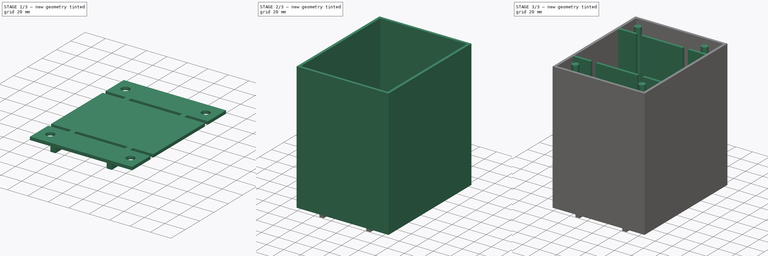
[diagram: build sequence overview — one tinted view per stage of 3, left to right]
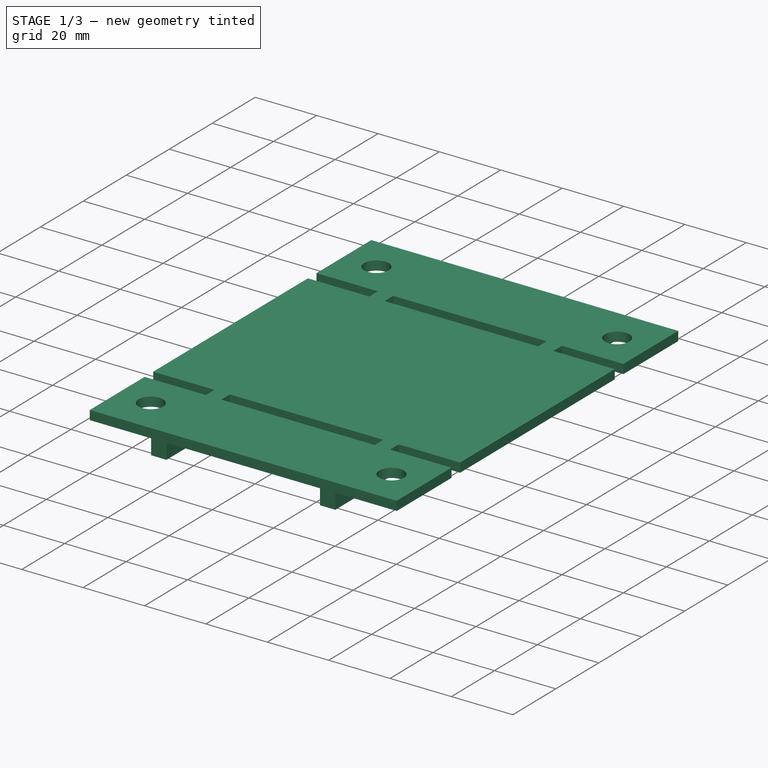
[diagram: stage 1 of 3 — iso view after this stage's code; geometry added in this stage tinted green]
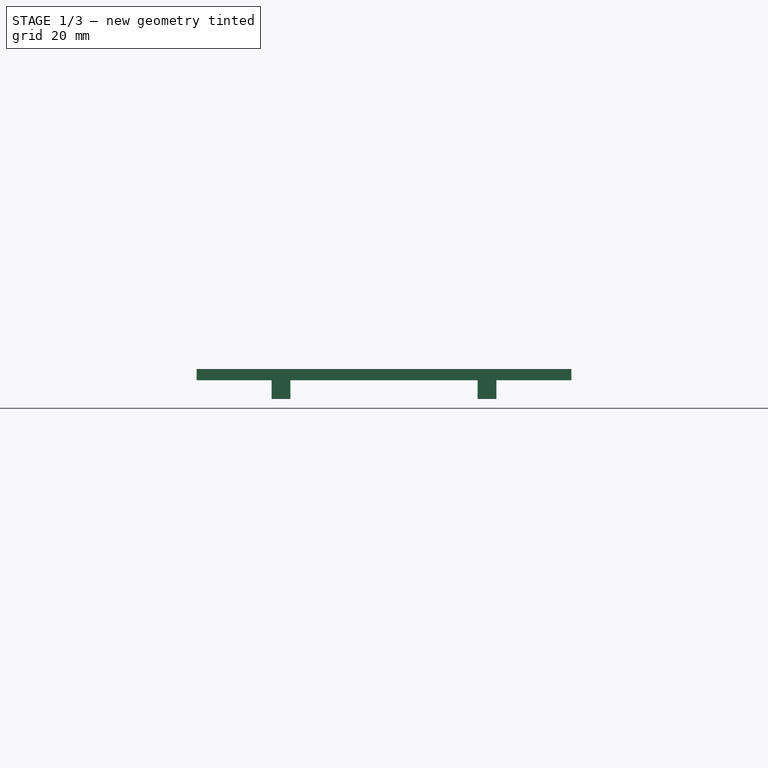
[diagram: stage 1 of 3 — front view after this stage's code; geometry added in this stage tinted green]
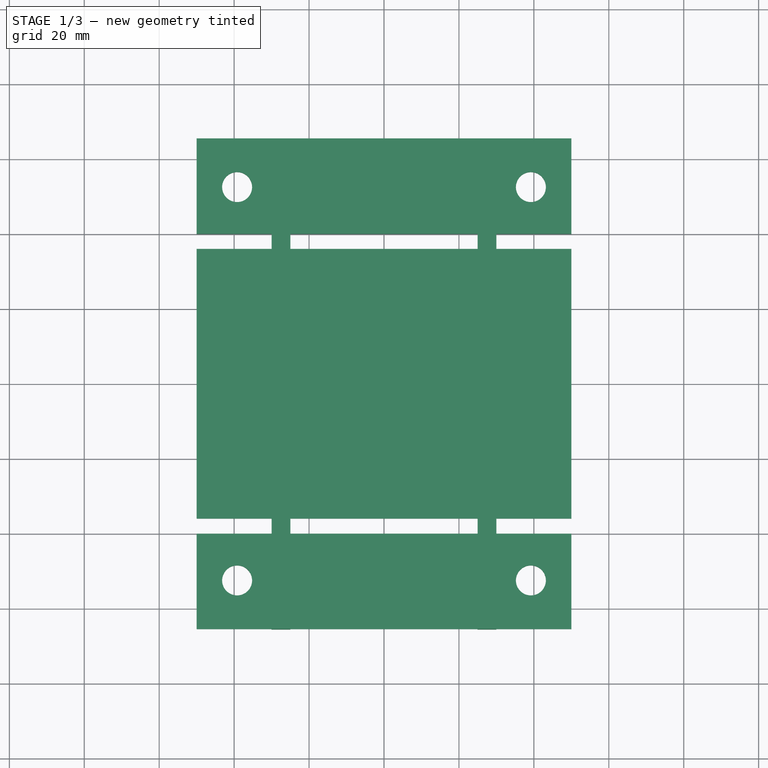
[diagram: stage 1 of 3 — top view after this stage's code; geometry added in this stage tinted green]
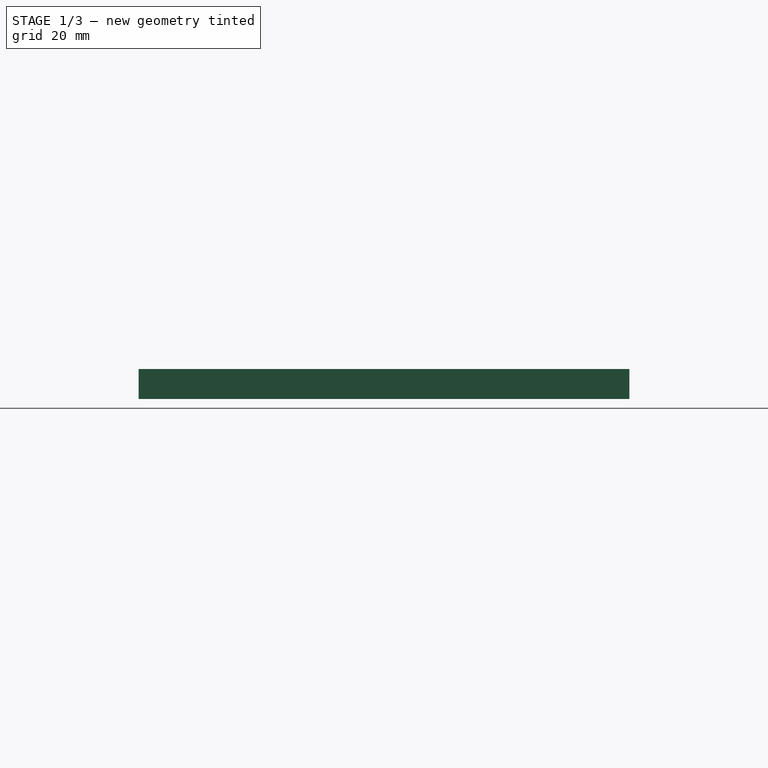
[diagram: stage 1 of 3 — right view after this stage's code; geometry added in this stage tinted green]
FCSTD DOCUMENT  (FreeCAD 0.19R)
Label: plateau_in
License: All rights reserved
LicenseURL: http://en.wikipedia.org/wiki/All_rights_reserved
objects: Sketcher::SketchObject×6, PartDesign::Pad×5, PartDesign::Body×2, PartDesign::Pocket×1
note: 20 computed .brp shape members not serialized (recipe doc carries the construction recipe); baked Part::Feature solids carry a one-line shape summary decoded from their .brp

FEATURE [Sketcher::SketchObject] Sketch
  FullyConstrained = false
  MapMode = 5
  Support = -> [XY_Plane]
  sketch-geometry (34):
    g0: LineSegment StartX=50 StartY=35.5 StartZ=0 EndX=50 EndY=-35.5 EndZ=0
    g1: LineSegment StartX=-50 StartY=65.5 StartZ=0 EndX=50 EndY=65.5 EndZ=0
    g2: LineSegment StartX=-50 StartY=-65.5 StartZ=0 EndX=50 EndY=-65.5 EndZ=0
    g3: Circle CenterX=-39.2072 CenterY=52.5 CenterZ=0 NormalX=0 NormalY=0 NormalZ=1 AngleXU=0 Radius=4
    g4: Circle CenterX=39.2072 CenterY=52.5 CenterZ=0 NormalX=0 NormalY=0 NormalZ=1 AngleXU=0 Radius=4
    g5: Circle CenterX=-39.2072 CenterY=-52.5 CenterZ=0 NormalX=0 NormalY=0 NormalZ=1 AngleXU=0 Radius=4
    g6: Circle CenterX=39.2072 CenterY=-52.5 CenterZ=0 NormalX=0 NormalY=0 NormalZ=1 AngleXU=0 Radius=4
    g7: LineSegment StartX=-50 StartY=40 StartZ=0 EndX=-30 EndY=40 EndZ=0
    g8: LineSegment StartX=-30 StartY=40 StartZ=0 EndX=-30 EndY=36 EndZ=0
    g9: LineSegment StartX=-30 StartY=36 StartZ=0 EndX=-50 EndY=36 EndZ=0
    g10: LineSegment StartX=50 StartY=40 StartZ=0 EndX=30 EndY=40 EndZ=0
    g11: LineSegment StartX=30 StartY=40 StartZ=0 EndX=30 EndY=36 EndZ=0
    g12: LineSegment StartX=30 StartY=36 StartZ=0 EndX=50 EndY=36 EndZ=0
    g13: LineSegment StartX=-50 StartY=40 StartZ=0 EndX=-50 EndY=65.5 EndZ=0
    g14: LineSegment StartX=-50 StartY=36 StartZ=0 EndX=-50 EndY=-36 EndZ=0
    g15: LineSegment StartX=50 StartY=65.5 StartZ=0 EndX=50 EndY=40 EndZ=0
    g16: LineSegment StartX=50 StartY=36 StartZ=0 EndX=50 EndY=35.5 EndZ=0
    g17: LineSegment StartX=-50 StartY=-65.5 StartZ=0 EndX=-50 EndY=-40 EndZ=0
    g18: LineSegment StartX=50 StartY=-65.5 StartZ=0 EndX=50 EndY=-40 EndZ=0
    g19: LineSegment StartX=-25 StartY=40 StartZ=0 EndX=25 EndY=40 EndZ=0
    g20: LineSegment StartX=25 StartY=40 StartZ=0 EndX=25 EndY=36 EndZ=0
    g21: LineSegment StartX=25 StartY=36 StartZ=0 EndX=-25 EndY=36 EndZ=0
    g22: LineSegment StartX=-25 StartY=36 StartZ=0 EndX=-25 EndY=40 EndZ=0
    g23: LineSegment StartX=-50 StartY=-40 StartZ=0 EndX=-30 EndY=-40 EndZ=0
    g24: LineSegment StartX=-30 StartY=-40 StartZ=0 EndX=-30 EndY=-36 EndZ=0
    g25: LineSegment StartX=-30 StartY=-36 StartZ=0 EndX=-50 EndY=-36 EndZ=0
    g26: LineSegment StartX=50 StartY=-40 StartZ=0 EndX=30 EndY=-40 EndZ=0
    g27: LineSegment StartX=30 StartY=-40 StartZ=0 EndX=30 EndY=-36 EndZ=0
    g28: LineSegment StartX=30 StartY=-36 StartZ=0 EndX=50 EndY=-36 EndZ=0
    g29: LineSegment StartX=50 StartY=-36 StartZ=0 EndX=50 EndY=-35.5 EndZ=0
    g30: LineSegment StartX=-25 StartY=-40 StartZ=0 EndX=25 EndY=-40 EndZ=0
    g31: LineSegment StartX=25 StartY=-40 StartZ=0 EndX=25 EndY=-36 EndZ=0
    g32: LineSegment StartX=25 StartY=-36 StartZ=0 EndX=-25 EndY=-36 EndZ=0
    g33: LineSegment StartX=-25 StartY=-36 StartZ=0 EndX=-25 EndY=-40 EndZ=0
  constraints (70):
    c: Symmetric(g0,g0,g-1)
    c: DistanceY(g0,g0) = 71
    c: Horizontal(g1)
    c: Horizontal(g2)
    c: DistanceY(g3,g1) = 13
    c: Radius(g3) = 4
    c: Radius(g4) = 4
    c: Radius(g5) = 4
    c: Radius(g6) = 4
    c: Coincident(g7,g8)
    c: Coincident(g8,g9)
    c: Horizontal(g7)
    c: Horizontal(g9)
    c: Vertical(g8)
    c: DistanceY(g9,g7) = 4
    c: DistanceX(g7,g7) = 20
    c: Coincident(g10,g11)
    c: Coincident(g11,g12)
    c: Horizontal(g10)
    c: Horizontal(g12)
    c: Vertical(g11)
    c: Coincident(g13,g7)
    c: Coincident(g13,g1)
    c: Vertical(g13)
    c: Coincident(g14,g9)
    c: Vertical(g14)
    c: Coincident(g15,g1)
    c: Coincident(g15,g10)
    c: Vertical(g15)
    c: Coincident(g16,g12)
    c: Coincident(g16,g0)
    c: Coincident(g17,g2)
    c: Vertical(g17)
    c: Coincident(g18,g2)
    c: Vertical(g18)
    c: Coincident(g19,g20)
    c: Coincident(g20,g21)
    c: Coincident(g21,g22)
    c: Coincident(g22,g19)
    c: Horizontal(g21)
    c: Vertical(g20)
    c: Vertical(g22)
    c: Symmetric(g19,g19,g-2)
    c: Horizontal(g19,g7)
    c: DistanceY(g21,g19) = 4
    c: DistanceX(g19,g19) = 50
    c: DistanceY(g0,g12) = 0.5
    c: DistanceY(g11,g10) = 4
    c: Horizontal(g20,g11)
    c: Coincident(g23,g24)
    c: Coincident(g24,g25)
    c: Horizontal(g23)
    c: Horizontal(g25)
    c: Vertical(g24)
    c: Coincident(g26,g27)
    c: Coincident(g27,g28)
    c: Horizontal(g26)
    c: Horizontal(g28)
    c: Vertical(g27)
    c: Coincident(g29,g28)
    c: Coincident(g30,g31)
    c: Coincident(g31,g32)
    c: Coincident(g32,g33)
    c: Coincident(g33,g30)
    c: Horizontal(g32)
    c: Vertical(g31)
    c: Vertical(g33)
    c: Coincident(g23,g17)
    c: Coincident(g25,g14)
    c: Coincident(g26,g18)
FEATURE [PartDesign::Pad] Pad
  Direction = (1,1,1)
  Length = 3
  Length2 = 100
  Profile = -> Sketch
  Type = 0
FEATURE [PartDesign::Body] Body001  label="cage"
  Group = -> [Sketch002,Pad002,Sketch003,Pocket,Sketch004,Pad003,Sketch005,Pad004]
  Origin = -> Origin001
  Tip = -> Pad004
FEATURE [PartDesign::Pad] Pad005
  BaseFeature = -> Pad
  Direction = (1,1,1)
  Length = 5
  Length2 = 100
  Profile = -> Sketch001
  Type = 0
FEATURE [PartDesign::Body] Body  label="plateau"
  Group = -> [Sketch,Pad,Sketch001,Pad005]
  Origin = -> Origin
  Placement = pos=(0,0,140.6) rot=(0,0,1;0rad)
  Tip = -> Pad005
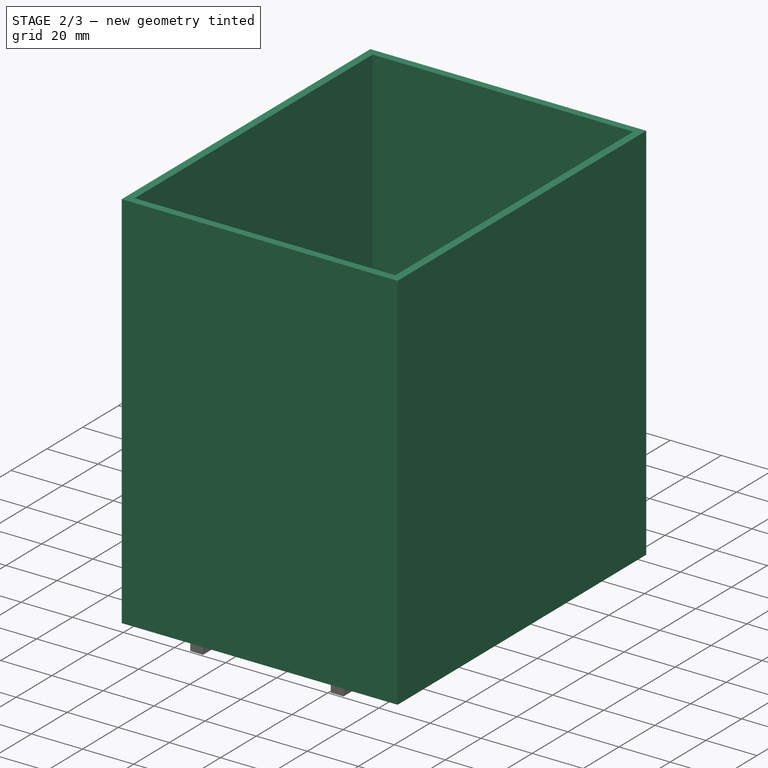
[diagram: stage 2 of 3 — iso view after this stage's code; geometry added in this stage tinted green]
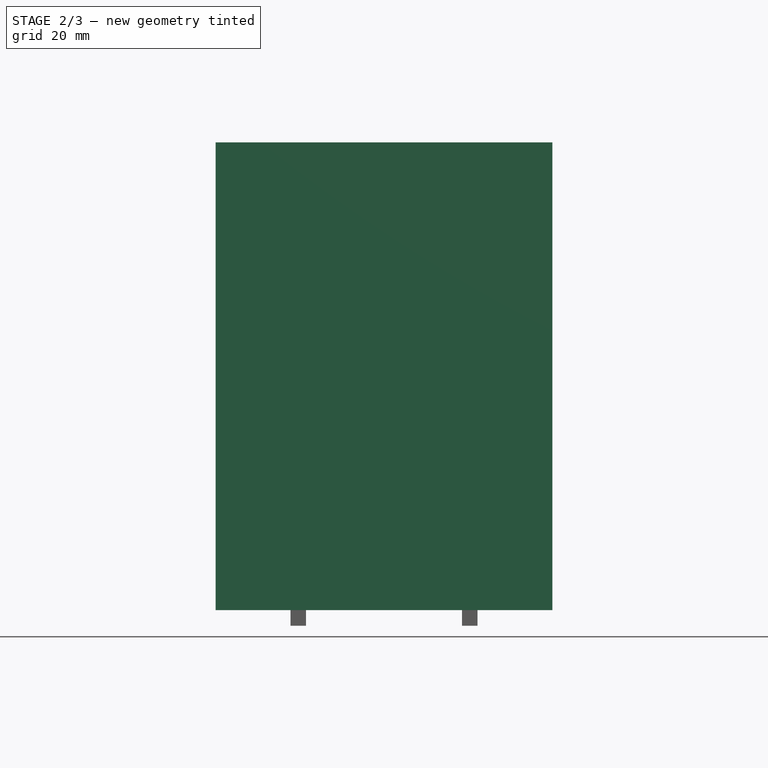
[diagram: stage 2 of 3 — front view after this stage's code; geometry added in this stage tinted green]
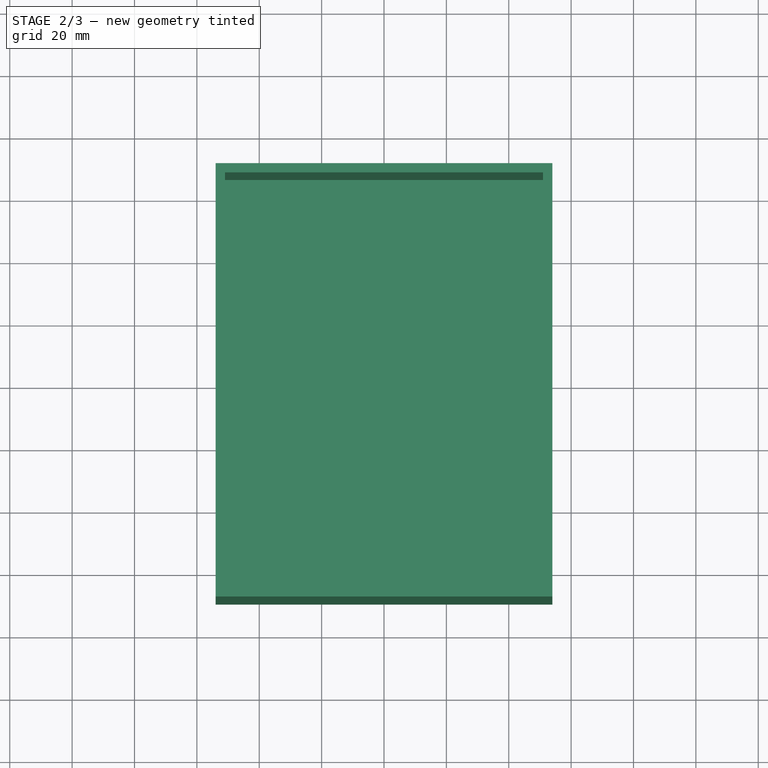
[diagram: stage 2 of 3 — top view after this stage's code; geometry added in this stage tinted green]
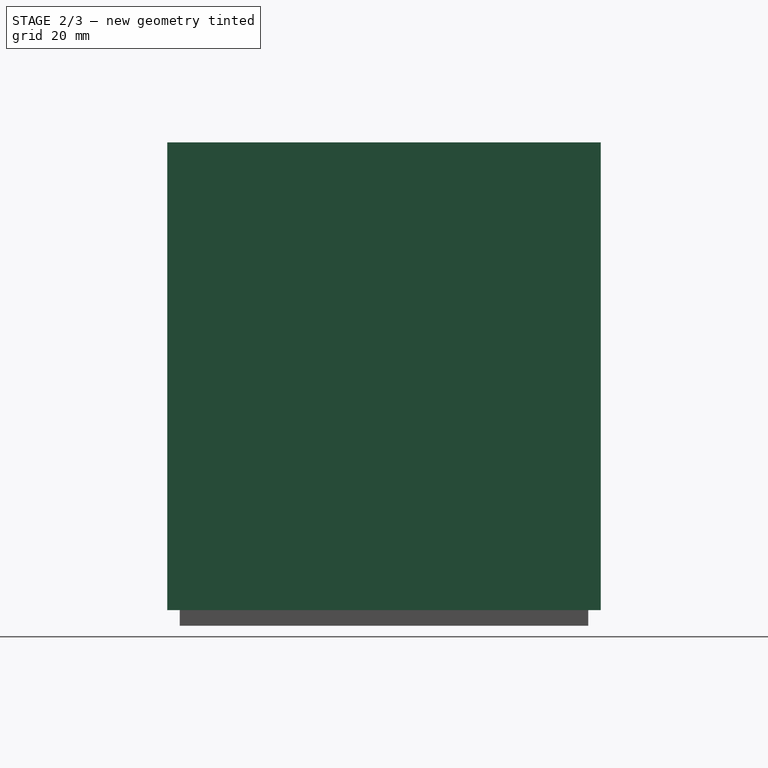
[diagram: stage 2 of 3 — right view after this stage's code; geometry added in this stage tinted green]
FEATURE [Sketcher::SketchObject] Sketch001
  ExternalGeometry = -> [Pad]
  FullyConstrained = false
  MapMode = 5
  Placement = pos=(0,0,0) rot=(1,0,0;3.14159rad)
  Support = -> [Pad]
  sketch-geometry (8):
    g0: LineSegment StartX=-30 StartY=65.5 StartZ=0 EndX=-25 EndY=65.5 EndZ=0
    g1: LineSegment StartX=-25 StartY=65.5 StartZ=0 EndX=-25 EndY=-65.5 EndZ=0
    g2: LineSegment StartX=-25 StartY=-65.5 StartZ=0 EndX=-30 EndY=-65.5 EndZ=0
    g3: LineSegment StartX=-30 StartY=-65.5 StartZ=0 EndX=-30 EndY=65.5 EndZ=0
    g4: LineSegment StartX=30 StartY=65.5 StartZ=0 EndX=25 EndY=65.5 EndZ=0
    g5: LineSegment StartX=25 StartY=65.5 StartZ=0 EndX=25 EndY=-65.5 EndZ=0
    g6: LineSegment StartX=25 StartY=-65.5 StartZ=0 EndX=30 EndY=-65.5 EndZ=0
    g7: LineSegment StartX=30 StartY=-65.5 StartZ=0 EndX=30 EndY=65.5 EndZ=0
  constraints (20):
    c: Coincident(g0,g1)
    c: Coincident(g1,g2)
    c: Coincident(g2,g3)
    c: Coincident(g3,g0)
    c: Horizontal(g0)
    c: Horizontal(g2)
    c: Vertical(g1)
    c: Vertical(g3)
    c: Vertical(g0,g-3)
    c: PointOnObject(g0,g-5)
    c: Vertical(g0,g-4)
    c: PointOnObject(g2,g-6)
    c: Coincident(g4,g5)
    c: Coincident(g5,g6)
    c: Coincident(g6,g7)
    c: Coincident(g7,g4)
    c: Horizontal(g4)
    c: Horizontal(g6)
    c: Vertical(g5)
    c: Vertical(g7)
FEATURE [Sketcher::SketchObject] Sketch002
  FullyConstrained = true
  MapMode = 5
  Support = -> [XY_Plane001]
  sketch-geometry (4):
    g0: LineSegment StartX=-54 StartY=69.5 StartZ=0 EndX=54 EndY=69.5 EndZ=0
    g1: LineSegment StartX=54 StartY=69.5 StartZ=0 EndX=54 EndY=-69.5 EndZ=0
    g2: LineSegment StartX=54 StartY=-69.5 StartZ=0 EndX=-54 EndY=-69.5 EndZ=0
    g3: LineSegment StartX=-54 StartY=-69.5 StartZ=0 EndX=-54 EndY=69.5 EndZ=0
  constraints (10):
    c: Coincident(g0,g1)
    c: Coincident(g1,g2)
    c: Coincident(g2,g3)
    c: Coincident(g3,g0)
    c: Horizontal(g2)
    c: Vertical(g3)
    c: Symmetric(g0,g0,g-2)
    c: Symmetric(g0,g1,g-1)
    c: Distance(g0) = 108
    c: Distance(g1) = 139
FEATURE [PartDesign::Pad] Pad002
  Direction = (1,1,1)
  Length = 150
  Length2 = 100
  Profile = -> Sketch002
  Type = 0
FEATURE [Sketcher::SketchObject] Sketch003
  ExternalGeometry = -> [Pad002]
  FullyConstrained = true
  MapMode = 5
  Placement = pos=(0,0,150) rot=(0,0,1;0rad)
  Support = -> [Pad002]
  sketch-geometry (4):
    g0: LineSegment StartX=-51 StartY=66.5 StartZ=0 EndX=51 EndY=66.5 EndZ=0
    g1: LineSegment StartX=51 StartY=66.5 StartZ=0 EndX=51 EndY=-66.5 EndZ=0
    g2: LineSegment StartX=51 StartY=-66.5 StartZ=0 EndX=-51 EndY=-66.5 EndZ=0
    g3: LineSegment StartX=-51 StartY=-66.5 StartZ=0 EndX=-51 EndY=66.5 EndZ=0
  constraints (10):
    c: Coincident(g0,g1)
    c: Coincident(g1,g2)
    c: Coincident(g2,g3)
    c: Coincident(g3,g0)
    c: Horizontal(g2)
    c: Vertical(g3)
    c: Symmetric(g0,g0,g-2)
    c: Symmetric(g0,g1,g-1)
    c: DistanceY(g0,g-3) = 3
    c: DistanceX(g-3,g0) = 3
FEATURE [PartDesign::Pocket] Pocket
  BaseFeature = -> Pad002
  Length = 139.6
  Length2 = 100
  Profile = -> Sketch003
  Type = 0
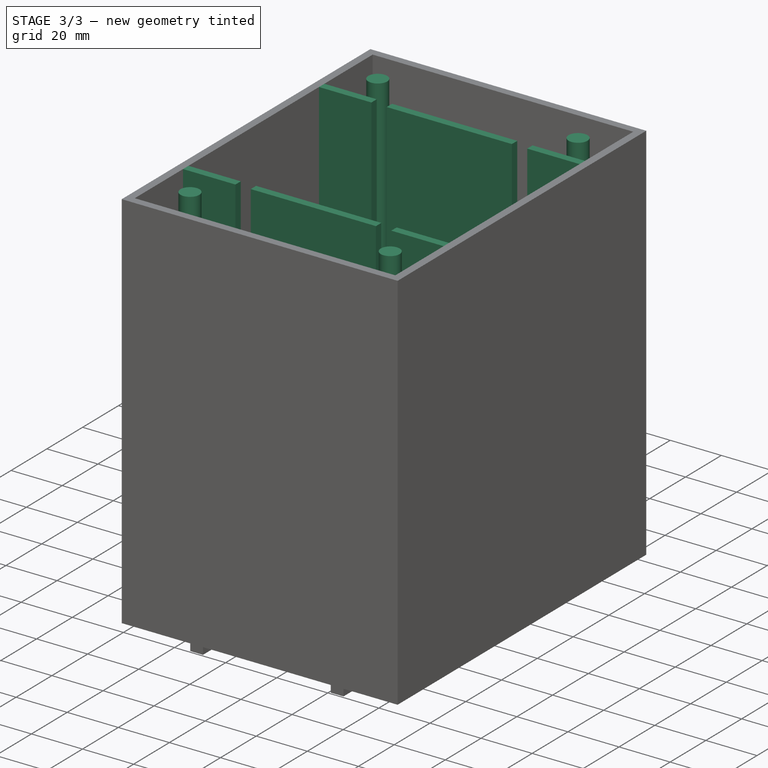
[diagram: stage 3 of 3 — iso view after this stage's code; geometry added in this stage tinted green]
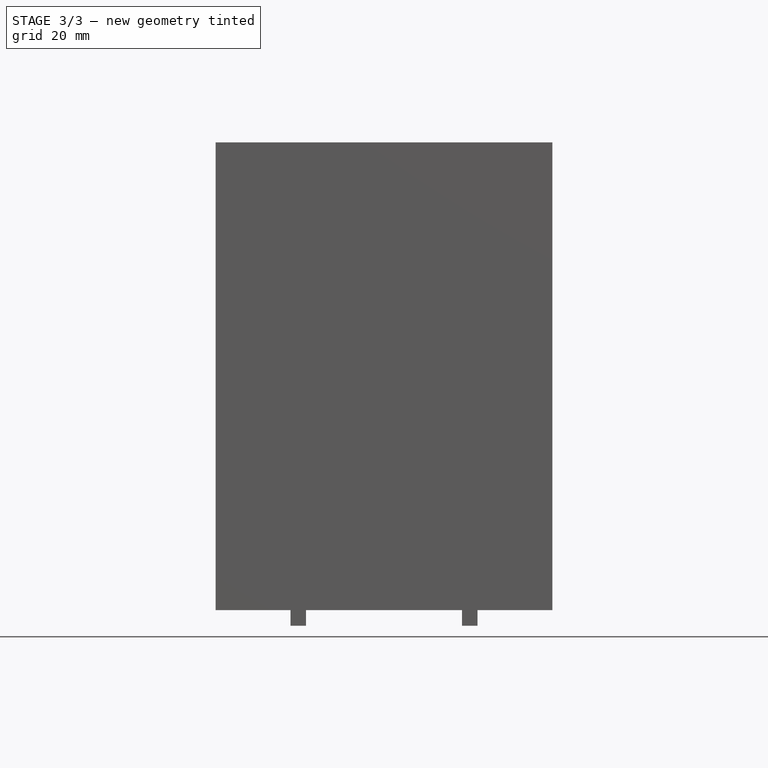
[diagram: stage 3 of 3 — front view after this stage's code; geometry added in this stage tinted green]
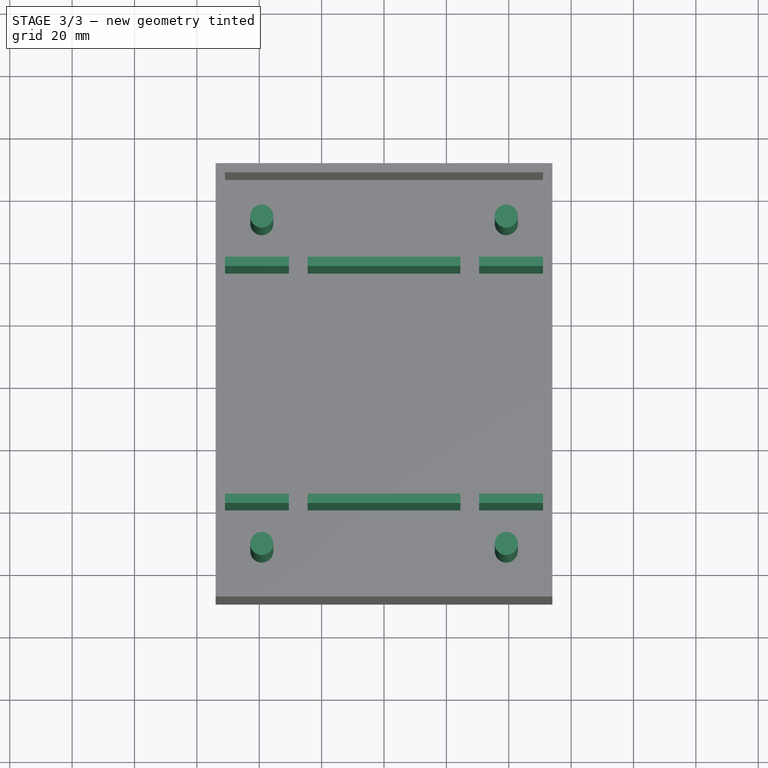
[diagram: stage 3 of 3 — top view after this stage's code; geometry added in this stage tinted green]
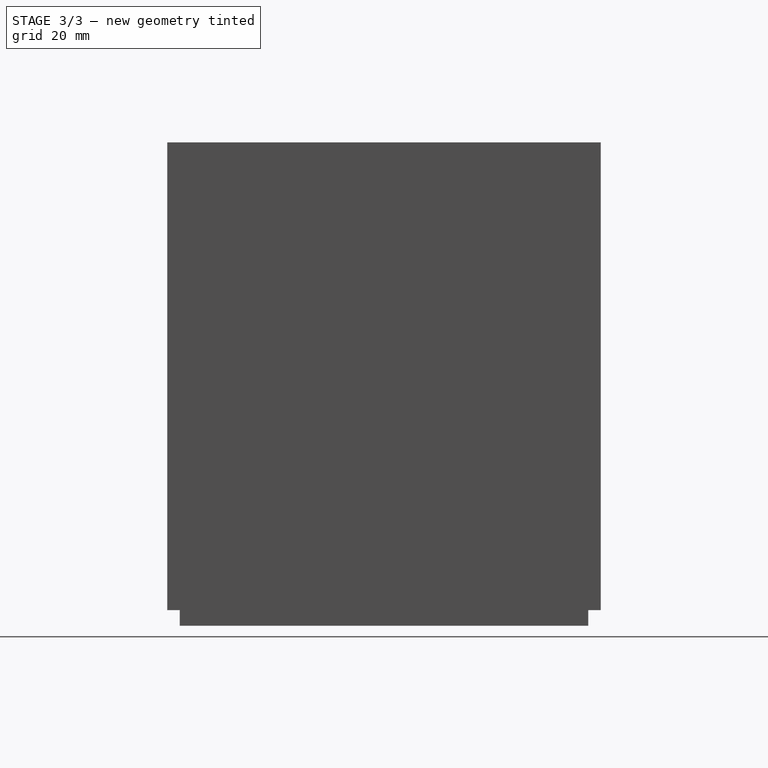
[diagram: stage 3 of 3 — right view after this stage's code; geometry added in this stage tinted green]
FEATURE [Sketcher::SketchObject] Sketch004
  ExternalGeometry = -> [Pocket]
  FullyConstrained = false
  MapMode = 5
  Placement = pos=(0,0,10.4) rot=(0,0,1;0rad)
  Support = -> [Pocket]
  sketch-geometry (4):
    g0: Circle CenterX=-39.2 CenterY=-52.5 CenterZ=0 NormalX=0 NormalY=0 NormalZ=1 AngleXU=0 Radius=3.7
    g1: Circle CenterX=39.2 CenterY=-52.5 CenterZ=0 NormalX=0 NormalY=0 NormalZ=1 AngleXU=0 Radius=3.7
    g2: Circle CenterX=-39.2 CenterY=52.5 CenterZ=0 NormalX=0 NormalY=0 NormalZ=1 AngleXU=0 Radius=3.7
    g3: Circle CenterX=39.2 CenterY=52.5 CenterZ=0 NormalX=0 NormalY=0 NormalZ=1 AngleXU=0 Radius=3.7
  constraints (6):
    c: Radius(g0) = 3.7
    c: DistanceX(g-5,g0) = 11.8
    c: DistanceY(g-5,g0) = 14
    c: Radius(g1) = 3.7
    c: Radius(g2) = 3.7
    c: Radius(g3) = 3.7
FEATURE [PartDesign::Pad] Pad003
  BaseFeature = -> Pocket
  Direction = (1,1,1)
  Length = 139.6
  Length2 = 100
  Profile = -> Sketch004
  Type = 0
FEATURE [Sketcher::SketchObject] Sketch005
  ExternalGeometry = -> [Pad003]
  FullyConstrained = false
  MapMode = 5
  Placement = pos=(0,0,10.4) rot=(0,0,1;0rad)
  Support = -> [Pad003]
  sketch-geometry (24):
    g0: LineSegment StartX=-51 StartY=39.5 StartZ=0 EndX=-30.5 EndY=39.5 EndZ=0
    g1: LineSegment StartX=-30.5 StartY=39.5 StartZ=0 EndX=-30.5 EndY=36.5 EndZ=0
    g2: LineSegment StartX=-30.5 StartY=36.5 StartZ=0 EndX=-51 EndY=36.5 EndZ=0
    g3: LineSegment StartX=-51 StartY=36.5 StartZ=0 EndX=-51 EndY=39.5 EndZ=0
    g4: LineSegment StartX=-24.5 StartY=36.5 StartZ=0 EndX=24.5 EndY=36.5 EndZ=0
    g5: LineSegment StartX=24.5 StartY=36.5 StartZ=0 EndX=24.5 EndY=39.5 EndZ=0
    g6: LineSegment StartX=24.5 StartY=39.5 StartZ=0 EndX=-24.5 EndY=39.5 EndZ=0
    g7: LineSegment StartX=-24.5 StartY=39.5 StartZ=0 EndX=-24.5 EndY=36.5 EndZ=0
    g8: LineSegment StartX=51 StartY=39.5 StartZ=0 EndX=30.5 EndY=39.5 EndZ=0
    g9: LineSegment StartX=30.5 StartY=39.5 StartZ=0 EndX=30.5 EndY=36.5 EndZ=0
    g10: LineSegment StartX=30.5 StartY=36.5 StartZ=0 EndX=51 EndY=36.5 EndZ=0
    g11: LineSegment StartX=51 StartY=36.5 StartZ=0 EndX=51 EndY=39.5 EndZ=0
    g12: LineSegment StartX=-51 StartY=-39.5 StartZ=0 EndX=-30.5 EndY=-39.5 EndZ=0
    g13: LineSegment StartX=-30.5 StartY=-39.5 StartZ=0 EndX=-30.5 EndY=-36.5 EndZ=0
    g14: LineSegment StartX=-30.5 StartY=-36.5 StartZ=0 EndX=-51 EndY=-36.5 EndZ=0
    g15: LineSegment StartX=-51 StartY=-36.5 StartZ=0 EndX=-51 EndY=-39.5 EndZ=0
    g16: LineSegment StartX=-24.5 StartY=-36.5 StartZ=0 EndX=24.5 EndY=-36.5 EndZ=0
    g17: LineSegment StartX=24.5 StartY=-36.5 StartZ=0 EndX=24.5 EndY=-39.5 EndZ=0
    g18: LineSegment StartX=24.5 StartY=-39.5 StartZ=0 EndX=-24.5 EndY=-39.5 EndZ=0
    g19: LineSegment StartX=-24.5 StartY=-39.5 StartZ=0 EndX=-24.5 EndY=-36.5 EndZ=0
    g20: LineSegment StartX=51 StartY=-39.5 StartZ=0 EndX=30.5 EndY=-39.5 EndZ=0
    g21: LineSegment StartX=30.5 StartY=-39.5 StartZ=0 EndX=30.5 EndY=-36.5 EndZ=0
    g22: LineSegment StartX=30.5 StartY=-36.5 StartZ=0 EndX=51 EndY=-36.5 EndZ=0
    g23: LineSegment StartX=51 StartY=-36.5 StartZ=0 EndX=51 EndY=-39.5 EndZ=0
  constraints (55):
    c: Coincident(g0,g1)
    c: Coincident(g1,g2)
    c: Coincident(g2,g3)
    c: Coincident(g3,g0)
    c: Horizontal(g0)
    c: Horizontal(g2)
    c: Vertical(g1)
    c: Vertical(g3)
    c: PointOnObject(g0,g-4)
    c: DistanceY(g2,g-4) = 30
    c: DistanceY(g2,g0) = 3
    c: DistanceX(g2,g1) = 20.5
    c: Coincident(g4,g5)
    c: Coincident(g5,g6)
    c: Coincident(g6,g7)
    c: Coincident(g7,g4)
    c: Horizontal(g4)
    c: Vertical(g5)
    c: Vertical(g7)
    c: Distance(g7) = 3
    c: Horizontal(g4,g1)
    c: DistanceX(g6,g6) = 49
    c: Symmetric(g6,g5,g-2)
    c: Coincident(g8,g9)
    c: Coincident(g9,g10)
    c: Coincident(g10,g11)
    c: Coincident(g11,g8)
    c: Horizontal(g8)
    c: Horizontal(g10)
    c: Vertical(g9)
    c: Vertical(g11)
    c: Coincident(g12,g13)
    c: Coincident(g13,g14)
    c: Coincident(g14,g15)
    c: Coincident(g15,g12)
    c: Horizontal(g12)
    c: Horizontal(g14)
    c: Vertical(g13)
    c: Vertical(g15)
    c: Coincident(g16,g17)
    c: Coincident(g17,g18)
    c: Coincident(g18,g19)
    c: Coincident(g19,g16)
    c: Horizontal(g16)
    c: Vertical(g17)
    c: Vertical(g19)
    c: Distance(g19) = 3
    c: Coincident(g20,g21)
    c: Coincident(g21,g22)
    c: Coincident(g22,g23)
    c: Coincident(g23,g20)
    c: Horizontal(g20)
    c: Horizontal(g22)
    c: Vertical(g21)
    c: Vertical(g23)
FEATURE [PartDesign::Pad] Pad004
  BaseFeature = -> Pad003
  Direction = (1,1,1)
  Length = 139.6
  Length2 = 100
  Profile = -> Sketch005
  Type = 0
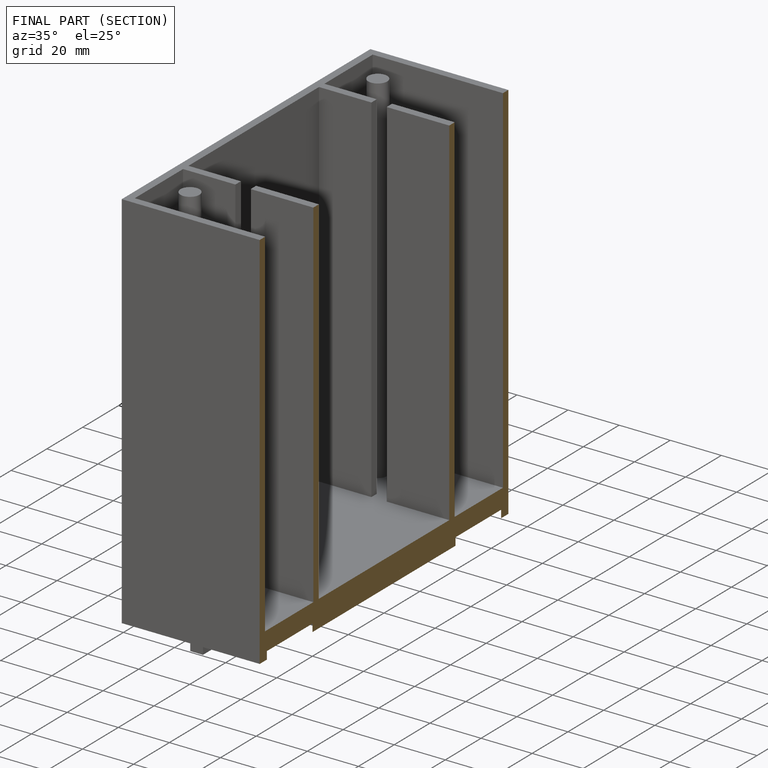
[diagram: finished part — half-section view (interior)]
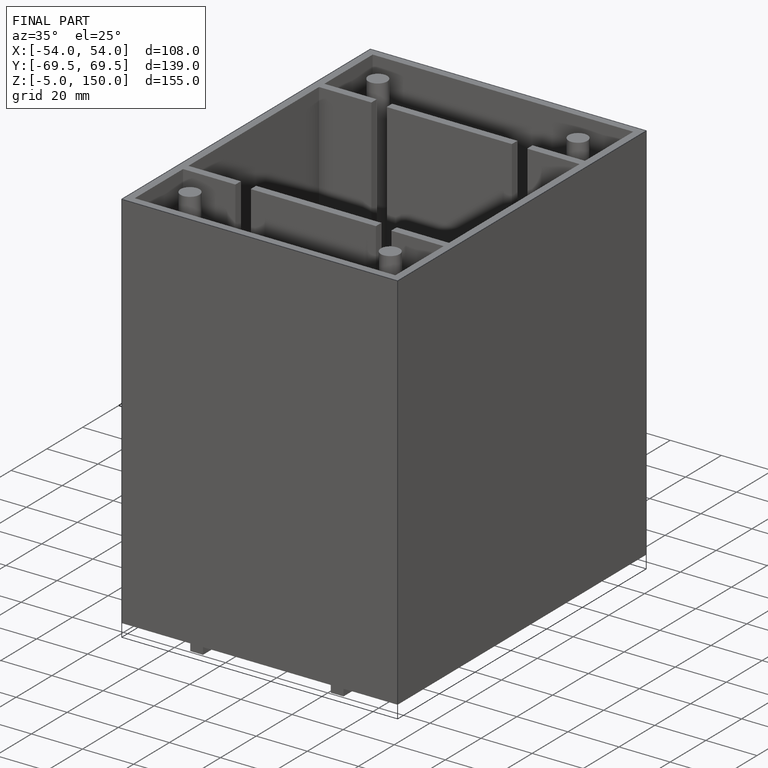
[diagram: finished part — iso view with bounding-box wireframe]
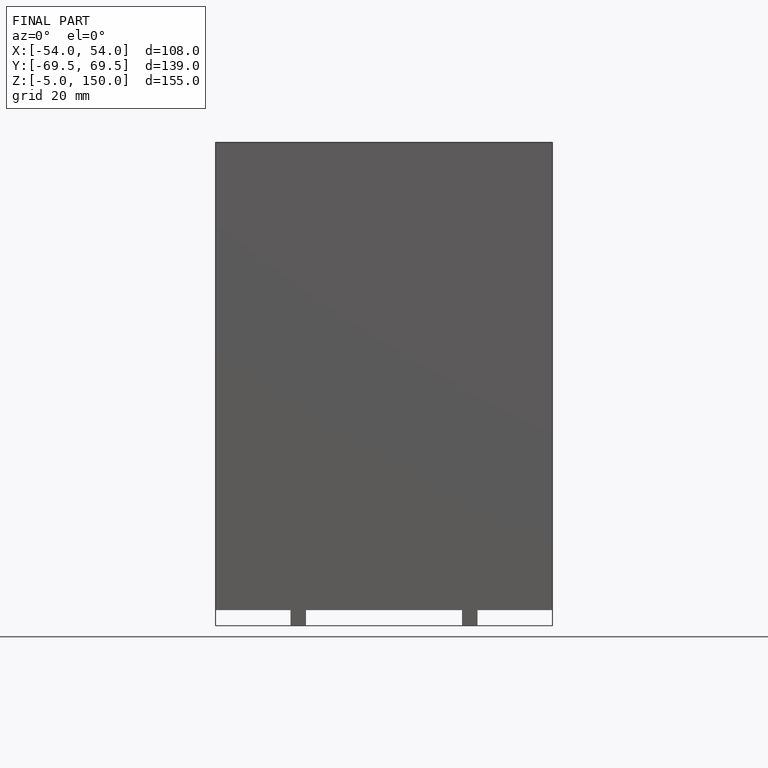
[diagram: finished part — front view with bounding-box wireframe]
